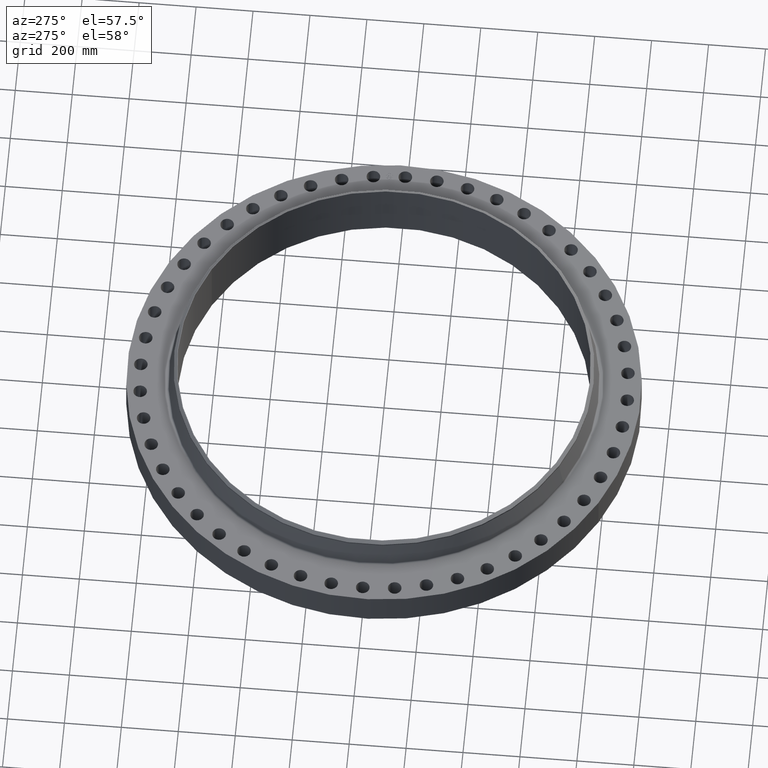
[diagram: clean part render]
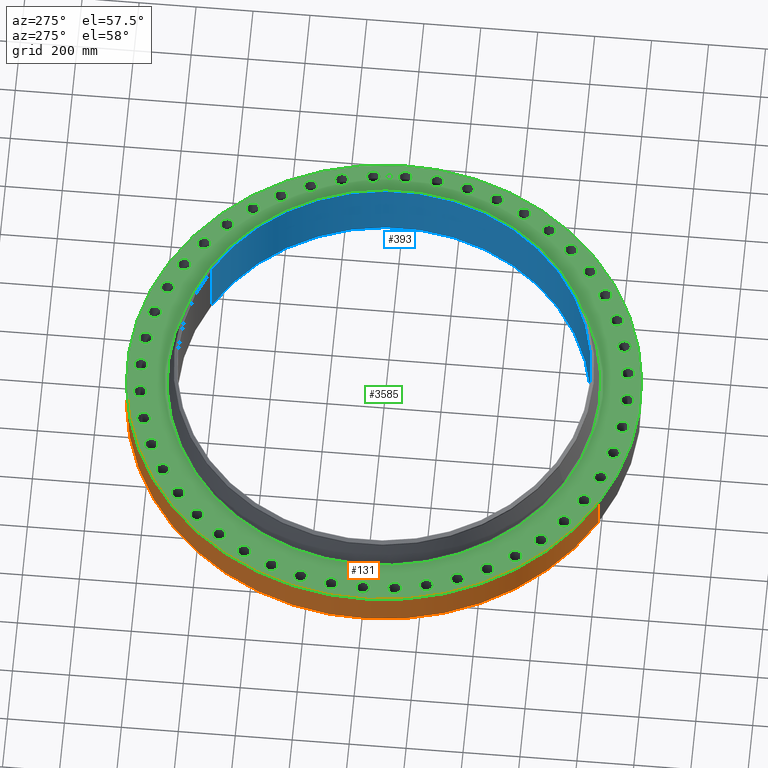
[diagram: same view with three faces highlighted in distinct colors, each labeled with its STEP entity id]
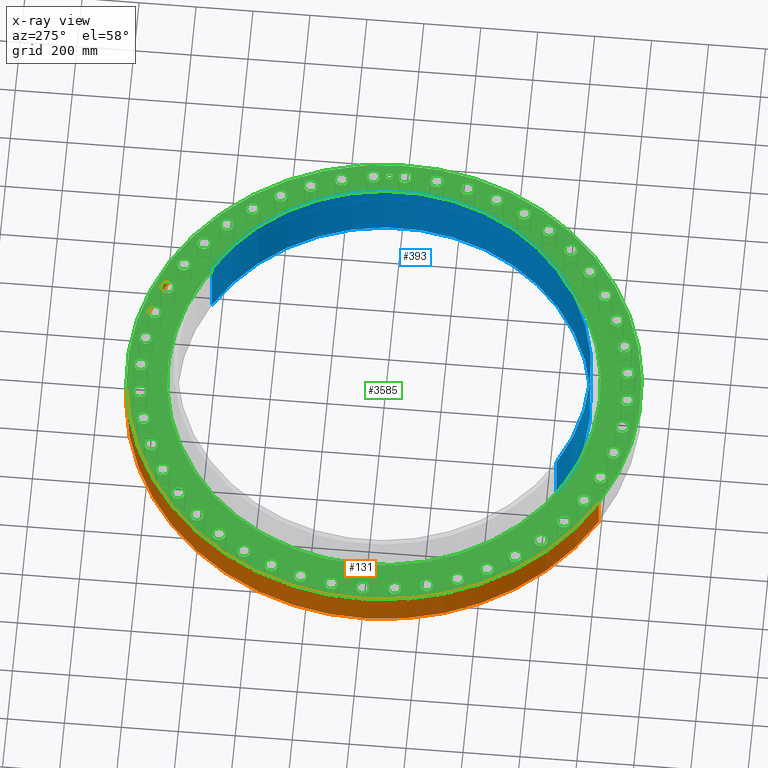
[diagram: x-ray of the same camera — body ghosted, the three highlighted faces saturated]
A machine part, auxiliary view with three faces highlighted in distinct colors.
The next image is the same camera in x-ray (body ghosted, the three faces saturated) — at least one of them is partly hidden behind the body in this view.
Their STEP definitions:

[orange] entity #131 — the highlighted cylindrical surface (partial cylindrical patch) has radius 901.7 mm, axis along (0, 0, -1).
#95=AXIS2_PLACEMENT_3D('Cylinder Axis2P3D',#92,#93,#94) ;
#99=AXIS2_PLACEMENT_3D('Circle Axis2P3D',#97,#98,$) ;
#115=AXIS2_PLACEMENT_3D('Circle Axis2P3D',#113,#114,$) ;
#92=CARTESIAN_POINT('Axis2P3D Location',(0.,0.,4.61350000002)) ;
#97=CARTESIAN_POINT('Axis2P3D Location',(0.,0.,4.47585975282E-015)) ;
#101=CARTESIAN_POINT('Vertex',(-17.0196066205,-31.1541809472,4.47585975282E-015)) ;
#103=CARTESIAN_POINT('Vertex',(17.0196066205,31.1541809472,4.47585975282E-015)) ;
#106=CARTESIAN_POINT('Line Origine',(-17.0196066205,-31.1541809472,2.50000000001)) ;
#110=CARTESIAN_POINT('Vertex',(-17.0196066205,-31.1541809472,5.00000000002)) ;
#113=CARTESIAN_POINT('Axis2P3D Location',(0.,0.,5.00000000002)) ;
#117=CARTESIAN_POINT('Vertex',(17.0196066205,31.1541809472,5.00000000002)) ;
#120=CARTESIAN_POINT('Line Origine',(17.0196066205,31.1541809472,2.50000000001)) ;
#93=DIRECTION('Axis2P3D Direction',(0.,0.,-0.0393700787402)) ;
#94=DIRECTION('Axis2P3D XDirection',(0.0188750212049,0.0345504945626,0.)) ;
#98=DIRECTION('Axis2P3D Direction',(0.,0.,-0.0393700787402)) ;
#107=DIRECTION('Vector Direction',(0.,0.,-0.0393700787402)) ;
#114=DIRECTION('Axis2P3D Direction',(0.,0.,-0.0393700787402)) ;
#121=DIRECTION('Vector Direction',(0.,0.,-0.0393700787402)) ;
#108=VECTOR('Line Direction',#107,0.0393700787402) ;
#122=VECTOR('Line Direction',#121,0.0393700787402) ;
#126=ORIENTED_EDGE('',*,*,#105,.F.) ;
#127=ORIENTED_EDGE('',*,*,#112,.T.) ;
#128=ORIENTED_EDGE('',*,*,#119,.T.) ;
#129=ORIENTED_EDGE('',*,*,#124,.F.) ;
#131=ADVANCED_FACE('PartBody',(#130),#96,.T.) ;
#100=CIRCLE('generated circle',#99,35.5000000001) ;
#116=CIRCLE('generated circle',#115,35.5000000001) ;
#96=CYLINDRICAL_SURFACE('generated cylinder',#95,35.5000000001) ;
#105=EDGE_CURVE('',#102,#104,#100,.T.) ;
#112=EDGE_CURVE('',#102,#111,#109,.F.) ;
#119=EDGE_CURVE('',#111,#118,#116,.T.) ;
#124=EDGE_CURVE('',#104,#118,#123,.F.) ;
#125=EDGE_LOOP('',(#126,#127,#128,#129)) ;
#130=FACE_OUTER_BOUND('',#125,.T.) ;
#109=LINE('Line',#106,#108) ;
#123=LINE('Line',#120,#122) ;
#102=VERTEX_POINT('',#101) ;
#104=VERTEX_POINT('',#103) ;
#111=VERTEX_POINT('',#110) ;
#118=VERTEX_POINT('',#117) ;

[blue] entity #393 — the highlighted cylindrical surface (partial cylindrical patch) has radius 723.9 mm, axis along (0, 0, -1).
#355=AXIS2_PLACEMENT_3D('Circle Axis2P3D',#353,#354,$) ;
#366=AXIS2_PLACEMENT_3D('Cylinder Axis2P3D',#363,#364,#365) ;
#377=AXIS2_PLACEMENT_3D('Circle Axis2P3D',#375,#376,$) ;
#348=CARTESIAN_POINT('Vertex',(-13.6636278503,-25.011103014,9.19000000004)) ;
#350=CARTESIAN_POINT('Vertex',(13.6636278503,25.011103014,9.19000000004)) ;
#353=CARTESIAN_POINT('Axis2P3D Location',(-2.23792987641E-015,-1.1189649382E-015,9.19000000004)) ;
#363=CARTESIAN_POINT('Axis2P3D Location',(0.,0.,4.61350000002)) ;
#368=CARTESIAN_POINT('Line Origine',(13.6636278503,25.011103014,4.56350000002)) ;
#372=CARTESIAN_POINT('Vertex',(13.6636278503,25.011103014,-0.0630000000003)) ;
#375=CARTESIAN_POINT('Axis2P3D Location',(0.,0.,-0.0630000000003)) ;
#379=CARTESIAN_POINT('Vertex',(-13.6636278503,-25.011103014,-0.0630000000003)) ;
#382=CARTESIAN_POINT('Line Origine',(-13.6636278503,-25.011103014,4.56350000002)) ;
#354=DIRECTION('Axis2P3D Direction',(0.,-0.,-0.0393700787402)) ;
#364=DIRECTION('Axis2P3D Direction',(0.,0.,-0.0393700787402)) ;
#365=DIRECTION('Axis2P3D XDirection',(-0.0188750212049,-0.0345504945626,0.)) ;
#369=DIRECTION('Vector Direction',(0.,0.,-0.0393700787402)) ;
#376=DIRECTION('Axis2P3D Direction',(0.,0.,-0.0393700787402)) ;
#383=DIRECTION('Vector Direction',(0.,0.,-0.0393700787402)) ;
#370=VECTOR('Line Direction',#369,0.0393700787402) ;
#384=VECTOR('Line Direction',#383,0.0393700787402) ;
#388=ORIENTED_EDGE('',*,*,#374,.T.) ;
#389=ORIENTED_EDGE('',*,*,#381,.T.) ;
#390=ORIENTED_EDGE('',*,*,#386,.F.) ;
#391=ORIENTED_EDGE('',*,*,#357,.F.) ;
#393=ADVANCED_FACE('PartBody',(#392),#367,.F.) ;
#356=CIRCLE('generated circle',#355,28.5000000001) ;
#378=CIRCLE('generated circle',#377,28.5000000001) ;
#367=CYLINDRICAL_SURFACE('generated cylinder',#366,28.5000000001) ;
#357=EDGE_CURVE('',#351,#349,#356,.T.) ;
#374=EDGE_CURVE('',#351,#373,#371,.T.) ;
#381=EDGE_CURVE('',#373,#380,#378,.T.) ;
#386=EDGE_CURVE('',#349,#380,#385,.T.) ;
#387=EDGE_LOOP('',(#388,#389,#390,#391)) ;
#392=FACE_OUTER_BOUND('',#387,.T.) ;
#371=LINE('Line',#368,#370) ;
#385=LINE('Line',#382,#384) ;
#349=VERTEX_POINT('',#348) ;
#351=VERTEX_POINT('',#350) ;
#373=VERTEX_POINT('',#372) ;
#380=VERTEX_POINT('',#379) ;

[green] entity #3585 — the highlighted planar face has unit normal (0, 0, -1).
#65=AXIS2_PLACEMENT_3D('Circle Axis2P3D',#63,#64,$) ;
#82=AXIS2_PLACEMENT_3D('Circle Axis2P3D',#80,#81,$) ;
#115=AXIS2_PLACEMENT_3D('Circle Axis2P3D',#113,#114,$) ;
#139=AXIS2_PLACEMENT_3D('Circle Axis2P3D',#137,#138,$) ;
#156=AXIS2_PLACEMENT_3D('Circle Axis2P3D',#154,#155,$) ;
#191=AXIS2_PLACEMENT_3D('Circle Axis2P3D',#189,#190,$) ;
#1362=AXIS2_PLACEMENT_3D('Circle Axis2P3D',#1360,#1361,$) ;
#1374=AXIS2_PLACEMENT_3D('Circle Axis2P3D',#1372,#1373,$) ;
#1405=AXIS2_PLACEMENT_3D('Circle Axis2P3D',#1403,#1404,$) ;
#1417=AXIS2_PLACEMENT_3D('Circle Axis2P3D',#1415,#1416,$) ;
#1448=AXIS2_PLACEMENT_3D('Circle Axis2P3D',#1446,#1447,$) ;
#1460=AXIS2_PLACEMENT_3D('Circle Axis2P3D',#1458,#1459,$) ;
#1491=AXIS2_PLACEMENT_3D('Circle Axis2P3D',#1489,#1490,$) ;
#1503=AXIS2_PLACEMENT_3D('Circle Axis2P3D',#1501,#1502,$) ;
#1534=AXIS2_PLACEMENT_3D('Circle Axis2P3D',#1532,#1533,$) ;
#1546=AXIS2_PLACEMENT_3D('Circle Axis2P3D',#1544,#1545,$) ;
#1577=AXIS2_PLACEMENT_3D('Circle Axis2P3D',#1575,#1576,$) ;
#1589=AXIS2_PLACEMENT_3D('Circle Axis2P3D',#1587,#1588,$) ;
#1620=AXIS2_PLACEMENT_3D('Circle Axis2P3D',#1618,#1619,$) ;
#1632=AXIS2_PLACEMENT_3D('Circle Axis2P3D',#1630,#1631,$) ;
#1663=AXIS2_PLACEMENT_3D('Circle Axis2P3D',#1661,#1662,$) ;
#1675=AXIS2_PLACEMENT_3D('Circle Axis2P3D',#1673,#1674,$) ;
#1706=AXIS2_PLACEMENT_3D('Circle Axis2P3D',#1704,#1705,$) ;
#1718=AXIS2_PLACEMENT_3D('Circle Axis2P3D',#1716,#1717,$) ;
#1749=AXIS2_PLACEMENT_3D('Circle Axis2P3D',#1747,#1748,$) ;
#1761=AXIS2_PLACEMENT_3D('Circle Axis2P3D',#1759,#1760,$) ;
#1792=AXIS2_PLACEMENT_3D('Circle Axis2P3D',#1790,#1791,$) ;
#1804=AXIS2_PLACEMENT_3D('Circle Axis2P3D',#1802,#1803,$) ;
#1835=AXIS2_PLACEMENT_3D('Circle Axis2P3D',#1833,#1834,$) ;
#1847=AXIS2_PLACEMENT_3D('Circle Axis2P3D',#1845,#1846,$) ;
#1878=AXIS2_PLACEMENT_3D('Circle Axis2P3D',#1876,#1877,$) ;
#1890=AXIS2_PLACEMENT_3D('Circle Axis2P3D',#1888,#1889,$) ;
#1921=AXIS2_PLACEMENT_3D('Circle Axis2P3D',#1919,#1920,$) ;
#1933=AXIS2_PLACEMENT_3D('Circle Axis2P3D',#1931,#1932,$) ;
#1964=AXIS2_PLACEMENT_3D('Circle Axis2P3D',#1962,#1963,$) ;
#1976=AXIS2_PLACEMENT_3D('Circle Axis2P3D',#1974,#1975,$) ;
#2007=AXIS2_PLACEMENT_3D('Circle Axis2P3D',#2005,#2006,$) ;
#2019=AXIS2_PLACEMENT_3D('Circle Axis2P3D',#2017,#2018,$) ;
#2050=AXIS2_PLACEMENT_3D('Circle Axis2P3D',#2048,#2049,$) ;
#2062=AXIS2_PLACEMENT_3D('Circle Axis2P3D',#2060,#2061,$) ;
#2093=AXIS2_PLACEMENT_3D('Circle Axis2P3D',#2091,#2092,$) ;
#2105=AXIS2_PLACEMENT_3D('Circle Axis2P3D',#2103,#2104,$) ;
#2136=AXIS2_PLACEMENT_3D('Circle Axis2P3D',#2134,#2135,$) ;
#2148=AXIS2_PLACEMENT_3D('Circle Axis2P3D',#2146,#2147,$) ;
#2179=AXIS2_PLACEMENT_3D('Circle Axis2P3D',#2177,#2178,$) ;
#2191=AXIS2_PLACEMENT_3D('Circle Axis2P3D',#2189,#2190,$) ;
#2222=AXIS2_PLACEMENT_3D('Circle Axis2P3D',#2220,#2221,$) ;
#2234=AXIS2_PLACEMENT_3D('Circle Axis2P3D',#2232,#2233,$) ;
#2265=AXIS2_PLACEMENT_3D('Circle Axis2P3D',#2263,#2264,$) ;
#2277=AXIS2_PLACEMENT_3D('Circle Axis2P3D',#2275,#2276,$) ;
#2308=AXIS2_PLACEMENT_3D('Circle Axis2P3D',#2306,#2307,$) ;
#2320=AXIS2_PLACEMENT_3D('Circle Axis2P3D',#2318,#2319,$) ;
#2351=AXIS2_PLACEMENT_3D('Circle Axis2P3D',#2349,#2350,$) ;
#2363=AXIS2_PLACEMENT_3D('Circle Axis2P3D',#2361,#2362,$) ;
#2394=AXIS2_PLACEMENT_3D('Circle Axis2P3D',#2392,#2393,$) ;
#2406=AXIS2_PLACEMENT_3D('Circle Axis2P3D',#2404,#2405,$) ;
#2437=AXIS2_PLACEMENT_3D('Circle Axis2P3D',#2435,#2436,$) ;
#2449=AXIS2_PLACEMENT_3D('Circle Axis2P3D',#2447,#2448,$) ;
#2480=AXIS2_PLACEMENT_3D('Circle Axis2P3D',#2478,#2479,$) ;
#2492=AXIS2_PLACEMENT_3D('Circle Axis2P3D',#2490,#2491,$) ;
#2523=AXIS2_PLACEMENT_3D('Circle Axis2P3D',#2521,#2522,$) ;
#2535=AXIS2_PLACEMENT_3D('Circle Axis2P3D',#2533,#2534,$) ;
#2566=AXIS2_PLACEMENT_3D('Circle Axis2P3D',#2564,#2565,$) ;
#2578=AXIS2_PLACEMENT_3D('Circle Axis2P3D',#2576,#2577,$) ;
#2609=AXIS2_PLACEMENT_3D('Circle Axis2P3D',#2607,#2608,$) ;
#2621=AXIS2_PLACEMENT_3D('Circle Axis2P3D',#2619,#2620,$) ;
#2652=AXIS2_PLACEMENT_3D('Circle Axis2P3D',#2650,#2651,$) ;
#2664=AXIS2_PLACEMENT_3D('Circle Axis2P3D',#2662,#2663,$) ;
#2695=AXIS2_PLACEMENT_3D('Circle Axis2P3D',#2693,#2694,$) ;
#2707=AXIS2_PLACEMENT_3D('Circle Axis2P3D',#2705,#2706,$) ;
#2738=AXIS2_PLACEMENT_3D('Circle Axis2P3D',#2736,#2737,$) ;
#2750=AXIS2_PLACEMENT_3D('Circle Axis2P3D',#2748,#2749,$) ;
#2781=AXIS2_PLACEMENT_3D('Circle Axis2P3D',#2779,#2780,$) ;
#2793=AXIS2_PLACEMENT_3D('Circle Axis2P3D',#2791,#2792,$) ;
#2824=AXIS2_PLACEMENT_3D('Circle Axis2P3D',#2822,#2823,$) ;
#2836=AXIS2_PLACEMENT_3D('Circle Axis2P3D',#2834,#2835,$) ;
#2867=AXIS2_PLACEMENT_3D('Circle Axis2P3D',#2865,#2866,$) ;
#2879=AXIS2_PLACEMENT_3D('Circle Axis2P3D',#2877,#2878,$) ;
#2910=AXIS2_PLACEMENT_3D('Circle Axis2P3D',#2908,#2909,$) ;
#2922=AXIS2_PLACEMENT_3D('Circle Axis2P3D',#2920,#2921,$) ;
#2953=AXIS2_PLACEMENT_3D('Circle Axis2P3D',#2951,#2952,$) ;
#2965=AXIS2_PLACEMENT_3D('Circle Axis2P3D',#2963,#2964,$) ;
#2996=AXIS2_PLACEMENT_3D('Circle Axis2P3D',#2994,#2995,$) ;
#3008=AXIS2_PLACEMENT_3D('Circle Axis2P3D',#3006,#3007,$) ;
#3039=AXIS2_PLACEMENT_3D('Circle Axis2P3D',#3037,#3038,$) ;
#3051=AXIS2_PLACEMENT_3D('Circle Axis2P3D',#3049,#3050,$) ;
#3082=AXIS2_PLACEMENT_3D('Circle Axis2P3D',#3080,#3081,$) ;
#3094=AXIS2_PLACEMENT_3D('Circle Axis2P3D',#3092,#3093,$) ;
#3125=AXIS2_PLACEMENT_3D('Circle Axis2P3D',#3123,#3124,$) ;
#3137=AXIS2_PLACEMENT_3D('Circle Axis2P3D',#3135,#3136,$) ;
#3168=AXIS2_PLACEMENT_3D('Circle Axis2P3D',#3166,#3167,$) ;
#3180=AXIS2_PLACEMENT_3D('Circle Axis2P3D',#3178,#3179,$) ;
#3211=AXIS2_PLACEMENT_3D('Circle Axis2P3D',#3209,#3210,$) ;
#3223=AXIS2_PLACEMENT_3D('Circle Axis2P3D',#3221,#3222,$) ;
#3254=AXIS2_PLACEMENT_3D('Circle Axis2P3D',#3252,#3253,$) ;
#3266=AXIS2_PLACEMENT_3D('Circle Axis2P3D',#3264,#3265,$) ;
#3297=AXIS2_PLACEMENT_3D('Circle Axis2P3D',#3295,#3296,$) ;
#3309=AXIS2_PLACEMENT_3D('Circle Axis2P3D',#3307,#3308,$) ;
#3340=AXIS2_PLACEMENT_3D('Circle Axis2P3D',#3338,#3339,$) ;
#3352=AXIS2_PLACEMENT_3D('Circle Axis2P3D',#3350,#3351,$) ;
#3365=AXIS2_PLACEMENT_3D('Plane Axis2P3D',#3362,#3363,#3364) ;
#3569=AXIS2_PLACEMENT_3D('Circle Axis2P3D',#3567,#3568,$) ;
#3578=AXIS2_PLACEMENT_3D('Circle Axis2P3D',#3576,#3577,$) ;
#46=CARTESIAN_POINT('Vertex',(32.800072392,0.45066000629,5.00000000002)) ;
#60=CARTESIAN_POINT('Vertex',(34.4499276083,-0.45066000629,5.00000000002)) ;
#63=CARTESIAN_POINT('Axis2P3D Location',(33.6250000001,0.,5.00000000002)) ;
#80=CARTESIAN_POINT('Axis2P3D Location',(33.6250000001,0.,5.00000000002)) ;
#110=CARTESIAN_POINT('Vertex',(-17.0196066205,-31.1541809472,5.00000000002)) ;
#113=CARTESIAN_POINT('Axis2P3D Location',(0.,0.,5.00000000002)) ;
#117=CARTESIAN_POINT('Vertex',(17.0196066205,31.1541809472,5.00000000002)) ;
#137=CARTESIAN_POINT('Axis2P3D Location',(0.,0.,5.00000000002)) ;
#154=CARTESIAN_POINT('Axis2P3D Location',(0.,0.,5.00000000002)) ;
#158=CARTESIAN_POINT('Vertex',(14.3333030332,26.2369352139,5.00000000002)) ;
#160=CARTESIAN_POINT('Vertex',(-14.3333030332,-26.2369352139,5.00000000002)) ;
#189=CARTESIAN_POINT('Axis2P3D Location',(0.,0.,5.00000000002)) ;
#1350=CARTESIAN_POINT('Vertex',(-32.5782861603,3.8344640064,5.00000000002)) ;
#1357=CARTESIAN_POINT('Vertex',(-34.0963807674,4.94342242043,5.00000000002)) ;
#1360=CARTESIAN_POINT('Axis2P3D Location',(-33.3373334638,4.38894321342,5.00000000002)) ;
#1372=CARTESIAN_POINT('Axis2P3D Location',(-33.3373334638,4.38894321342,5.00000000002)) ;
#1393=CARTESIAN_POINT('Vertex',(31.79907642,-8.05397927683,5.00000000002)) ;
#1400=CARTESIAN_POINT('Vertex',(33.1594353982,-9.35160150639,5.00000000002)) ;
#1403=CARTESIAN_POINT('Axis2P3D Location',(32.4792559091,-8.70279039161,5.00000000002)) ;
#1415=CARTESIAN_POINT('Axis2P3D Location',(32.4792559091,-8.70279039161,5.00000000002)) ;
#1436=CARTESIAN_POINT('Vertex',(-31.79907642,8.05397927683,5.00000000002)) ;
#1443=CARTESIAN_POINT('Vertex',(-33.1594353982,9.35160150639,5.00000000002)) ;
#1446=CARTESIAN_POINT('Axis2P3D Location',(-32.4792559091,8.70279039161,5.00000000002)) ;
#1458=CARTESIAN_POINT('Axis2P3D Location',(-32.4792559091,8.70279039161,5.00000000002)) ;
#1479=CARTESIAN_POINT('Vertex',(30.4757756659,-12.1356887288,5.00000000002)) ;
#1486=CARTESIAN_POINT('Vertex',(31.6551228958,-13.5997720978,5.00000000002)) ;
#1489=CARTESIAN_POINT('Axis2P3D Location',(31.0654492808,-12.8677304133,5.00000000002)) ;
#1501=CARTESIAN_POINT('Axis2P3D Location',(31.0654492808,-12.8677304133,5.00000000002)) ;
#1522=CARTESIAN_POINT('Vertex',(-30.4757756659,12.1356887288,5.00000000002)) ;
#1529=CARTESIAN_POINT('Vertex',(-31.6551228958,13.5997720978,5.00000000002)) ;
#1532=CARTESIAN_POINT('Axis2P3D Location',(-31.0654492808,12.8677304133,5.00000000002)) ;
#1544=CARTESIAN_POINT('Axis2P3D Location',(-31.0654492808,12.8677304133,5.00000000002)) ;
#1565=CARTESIAN_POINT('Vertex',(28.6310259405,-16.0097531821,5.00000000002)) ;
#1572=CARTESIAN_POINT('Vertex',(29.6091824642,-17.6152468181,5.00000000002)) ;
#1575=CARTESIAN_POINT('Axis2P3D Location',(29.1201042024,-16.8125000001,5.00000000002)) ;
#1587=CARTESIAN_POINT('Axis2P3D Location',(29.1201042024,-16.8125000001,5.00000000002)) ;
#1608=CARTESIAN_POINT('Vertex',(-28.6310259405,16.0097531821,5.00000000002)) ;
#1615=CARTESIAN_POINT('Vertex',(-29.6091824642,17.6152468181,5.00000000002)) ;
#1618=CARTESIAN_POINT('Axis2P3D Location',(-29.1201042024,16.8125000001,5.00000000002)) ;
#1630=CARTESIAN_POINT('Axis2P3D Location',(-29.1201042024,16.8125000001,5.00000000002)) ;
#1651=CARTESIAN_POINT('Vertex',(26.2963914234,-19.6098863196,5.00000000002)) ;
#1658=CARTESIAN_POINT('Vertex',(27.0566207114,-21.3293197814,5.00000000002)) ;
#1661=CARTESIAN_POINT('Axis2P3D Location',(26.6765060674,-20.4696030505,5.00000000002)) ;
#1673=CARTESIAN_POINT('Axis2P3D Location',(26.6765060674,-20.4696030505,5.00000000002)) ;
#1694=CARTESIAN_POINT('Vertex',(-26.2963914234,19.6098863196,5.00000000002)) ;
#1701=CARTESIAN_POINT('Vertex',(-27.0566207114,21.3293197814,5.00000000002)) ;
#1704=CARTESIAN_POINT('Axis2P3D Location',(-26.6765060674,20.4696030505,5.00000000002)) ;
#1716=CARTESIAN_POINT('Axis2P3D Location',(-26.6765060674,20.4696030505,5.00000000002)) ;
#1737=CARTESIAN_POINT('Vertex',(23.5118183582,-22.8744888653,5.00000000002)) ;
#1744=CARTESIAN_POINT('Vertex',(24.0411126768,-24.6784421697,5.00000000002)) ;
#1747=CARTESIAN_POINT('Axis2P3D Location',(23.7764655175,-23.7764655175,5.00000000002)) ;
#1759=CARTESIAN_POINT('Axis2P3D Location',(23.7764655175,-23.7764655175,5.00000000002)) ;
#1780=CARTESIAN_POINT('Vertex',(-23.5118183582,22.8744888653,5.00000000002)) ;
#1787=CARTESIAN_POINT('Vertex',(-24.0411126768,24.6784421697,5.00000000002)) ;
#1790=CARTESIAN_POINT('Axis2P3D Location',(-23.7764655175,23.7764655175,5.00000000002)) ;
#1802=CARTESIAN_POINT('Axis2P3D Location',(-23.7764655175,23.7764655175,5.00000000002)) ;
#1823=CARTESIAN_POINT('Vertex',(20.3249515622,-25.7477025645,5.00000000002)) ;
#1830=CARTESIAN_POINT('Vertex',(20.6142545388,-27.6053095703,5.00000000002)) ;
#1833=CARTESIAN_POINT('Axis2P3D Location',(20.4696030505,-26.6765060674,5.00000000002)) ;
#1845=CARTESIAN_POINT('Axis2P3D Location',(20.4696030505,-26.6765060674,5.00000000002)) ;
#1866=CARTESIAN_POINT('Vertex',(-20.3249515622,25.7477025645,5.00000000002)) ;
#1873=CARTESIAN_POINT('Vertex',(-20.6142545388,27.6053095703,5.00000000002)) ;
#1876=CARTESIAN_POINT('Axis2P3D Location',(-20.4696030505,26.6765060674,5.00000000002)) ;
#1888=CARTESIAN_POINT('Axis2P3D Location',(-20.4696030505,26.6765060674,5.00000000002)) ;
#1909=CARTESIAN_POINT('Vertex',(16.7903192099,-28.1803659343,5.00000000002)) ;
#1916=CARTESIAN_POINT('Vertex',(16.8346807902,-30.0598424705,5.00000000002)) ;
#1919=CARTESIAN_POINT('Axis2P3D Location',(16.8125000001,-29.1201042024,5.00000000002)) ;
#1931=CARTESIAN_POINT('Axis2P3D Location',(16.8125000001,-29.1201042024,5.00000000002)) ;
#1952=CARTESIAN_POINT('Vertex',(-16.7903192099,28.1803659343,5.00000000002)) ;
#1959=CARTESIAN_POINT('Vertex',(-16.8346807902,30.0598424705,5.00000000002)) ;
#1962=CARTESIAN_POINT('Axis2P3D Location',(-16.8125000001,29.1201042024,5.00000000002)) ;
#1974=CARTESIAN_POINT('Axis2P3D Location',(-16.8125000001,29.1201042024,5.00000000002)) ;
#1995=CARTESIAN_POINT('Vertex',(12.9683998407,-30.1308554298,5.00000000002)) ;
#2002=CARTESIAN_POINT('Vertex',(12.7670609859,-32.0000431319,5.00000000002)) ;
#2005=CARTESIAN_POINT('Axis2P3D Location',(12.8677304133,-31.0654492808,5.00000000002)) ;
#2017=CARTESIAN_POINT('Axis2P3D Location',(12.8677304133,-31.0654492808,5.00000000002)) ;
#2038=CARTESIAN_POINT('Vertex',(-12.9683998407,30.1308554298,5.00000000002)) ;
#2045=CARTESIAN_POINT('Vertex',(-12.7670609859,32.0000431319,5.00000000002)) ;
#2048=CARTESIAN_POINT('Axis2P3D Location',(-12.8677304133,31.0654492808,5.00000000002)) ;
#2060=CARTESIAN_POINT('Axis2P3D Location',(-12.8677304133,31.0654492808,5.00000000002)) ;
#2081=CARTESIAN_POINT('Vertex',(8.92458755473,-31.565797635,5.00000000002)) ;
#2088=CARTESIAN_POINT('Vertex',(8.48099322848,-33.3927141832,5.00000000002)) ;
#2091=CARTESIAN_POINT('Axis2P3D Location',(8.70279039161,-32.4792559091,5.00000000002)) ;
#2103=CARTESIAN_POINT('Axis2P3D Location',(8.70279039161,-32.4792559091,5.00000000002)) ;
#2124=CARTESIAN_POINT('Vertex',(-8.92458755473,31.565797635,5.00000000002)) ;
#2131=CARTESIAN_POINT('Vertex',(-8.48099322848,33.3927141832,5.00000000002)) ;
#2134=CARTESIAN_POINT('Axis2P3D Location',(-8.70279039161,32.4792559091,5.00000000002)) ;
#2146=CARTESIAN_POINT('Axis2P3D Location',(-8.70279039161,32.4792559091,5.00000000002)) ;
#2167=CARTESIAN_POINT('Vertex',(4.72807310133,-32.4606402911,5.00000000002)) ;
#2174=CARTESIAN_POINT('Vertex',(4.04981332551,-34.2140266366,5.00000000002)) ;
#2177=CARTESIAN_POINT('Axis2P3D Location',(4.38894321342,-33.3373334638,5.00000000002)) ;
#2189=CARTESIAN_POINT('Axis2P3D Location',(4.38894321342,-33.3373334638,5.00000000002)) ;
#2210=CARTESIAN_POINT('Vertex',(-4.72807310133,32.4606402911,5.00000000002)) ;
#2217=CARTESIAN_POINT('Vertex',(-4.04981332551,34.2140266366,5.00000000002)) ;
#2220=CARTESIAN_POINT('Axis2P3D Location',(-4.38894321342,33.3373334638,5.00000000002)) ;
#2232=CARTESIAN_POINT('Axis2P3D Location',(-4.38894321342,33.3373334638,5.00000000002)) ;
#2253=CARTESIAN_POINT('Vertex',(0.45066000629,-32.800072392,5.00000000002)) ;
#2260=CARTESIAN_POINT('Vertex',(-0.45066000629,-34.4499276083,5.00000000002)) ;
#2263=CARTESIAN_POINT('Axis2P3D Location',(-2.41692232174E-015,-33.6250000001,5.00000000002)) ;
#2275=CARTESIAN_POINT('Axis2P3D Location',(-2.41692232174E-015,-33.6250000001,5.00000000002)) ;
#2296=CARTESIAN_POINT('Vertex',(-0.45066000629,32.800072392,5.00000000002)) ;
#2303=CARTESIAN_POINT('Vertex',(0.45066000629,34.4499276083,5.00000000002)) ;
#2306=CARTESIAN_POINT('Axis2P3D Location',(-1.7009525404E-015,33.6250000001,5.00000000002)) ;
#2318=CARTESIAN_POINT('Axis2P3D Location',(-1.7009525404E-015,33.6250000001,5.00000000002)) ;
#2339=CARTESIAN_POINT('Vertex',(-3.8344640064,-32.5782861603,5.00000000002)) ;
#2346=CARTESIAN_POINT('Vertex',(-4.94342242043,-34.0963807674,5.00000000002)) ;
#2349=CARTESIAN_POINT('Axis2P3D Location',(-4.38894321342,-33.3373334638,5.00000000002)) ;
#2361=CARTESIAN_POINT('Axis2P3D Location',(-4.38894321342,-33.3373334638,5.00000000002)) ;
#2382=CARTESIAN_POINT('Vertex',(3.8344640064,32.5782861603,5.00000000002)) ;
#2389=CARTESIAN_POINT('Vertex',(4.94342242043,34.0963807674,5.00000000002)) ;
#2392=CARTESIAN_POINT('Axis2P3D Location',(4.38894321342,33.3373334638,5.00000000002)) ;
#2404=CARTESIAN_POINT('Axis2P3D Location',(4.38894321342,33.3373334638,5.00000000002)) ;
#2425=CARTESIAN_POINT('Vertex',(-8.05397927683,-31.79907642,5.00000000002)) ;
#2432=CARTESIAN_POINT('Vertex',(-9.35160150639,-33.1594353982,5.00000000002)) ;
#2435=CARTESIAN_POINT('Axis2P3D Location',(-8.70279039161,-32.4792559091,5.00000000002)) ;
#2447=CARTESIAN_POINT('Axis2P3D Location',(-8.70279039161,-32.4792559091,5.00000000002)) ;
#2468=CARTESIAN_POINT('Vertex',(8.05397927683,31.79907642,5.00000000002)) ;
#2475=CARTESIAN_POINT('Vertex',(9.35160150639,33.1594353982,5.00000000002)) ;
#2478=CARTESIAN_POINT('Axis2P3D Location',(8.70279039161,32.4792559091,5.00000000002)) ;
#2490=CARTESIAN_POINT('Axis2P3D Location',(8.70279039161,32.4792559091,5.00000000002)) ;
#2511=CARTESIAN_POINT('Vertex',(-12.1356887288,-30.4757756659,5.00000000002)) ;
#2518=CARTESIAN_POINT('Vertex',(-13.5997720978,-31.6551228958,5.00000000002)) ;
#2521=CARTESIAN_POINT('Axis2P3D Location',(-12.8677304133,-31.0654492808,5.00000000002)) ;
#2533=CARTESIAN_POINT('Axis2P3D Location',(-12.8677304133,-31.0654492808,5.00000000002)) ;
#2554=CARTESIAN_POINT('Vertex',(12.1356887288,30.4757756659,5.00000000002)) ;
#2561=CARTESIAN_POINT('Vertex',(13.5997720978,31.6551228958,5.00000000002)) ;
#2564=CARTESIAN_POINT('Axis2P3D Location',(12.8677304133,31.0654492808,5.00000000002)) ;
#2576=CARTESIAN_POINT('Axis2P3D Location',(12.8677304133,31.0654492808,5.00000000002)) ;
#2597=CARTESIAN_POINT('Vertex',(-16.0097531821,-28.6310259405,5.00000000002)) ;
#2604=CARTESIAN_POINT('Vertex',(-17.6152468181,-29.6091824642,5.00000000002)) ;
#2607=CARTESIAN_POINT('Axis2P3D Location',(-16.8125000001,-29.1201042024,5.00000000002)) ;
#2619=CARTESIAN_POINT('Axis2P3D Location',(-16.8125000001,-29.1201042024,5.00000000002)) ;
#2640=CARTESIAN_POINT('Vertex',(16.0097531821,28.6310259405,5.00000000002)) ;
#2647=CARTESIAN_POINT('Vertex',(17.6152468181,29.6091824642,5.00000000002)) ;
#2650=CARTESIAN_POINT('Axis2P3D Location',(16.8125000001,29.1201042024,5.00000000002)) ;
#2662=CARTESIAN_POINT('Axis2P3D Location',(16.8125000001,29.1201042024,5.00000000002)) ;
#2683=CARTESIAN_POINT('Vertex',(-19.6098863196,-26.2963914234,5.00000000002)) ;
#2690=CARTESIAN_POINT('Vertex',(-21.3293197814,-27.0566207114,5.00000000002)) ;
#2693=CARTESIAN_POINT('Axis2P3D Location',(-20.4696030505,-26.6765060674,5.00000000002)) ;
#2705=CARTESIAN_POINT('Axis2P3D Location',(-20.4696030505,-26.6765060674,5.00000000002)) ;
#2726=CARTESIAN_POINT('Vertex',(19.6098863196,26.2963914234,5.00000000002)) ;
#2733=CARTESIAN_POINT('Vertex',(21.3293197814,27.0566207114,5.00000000002)) ;
#2736=CARTESIAN_POINT('Axis2P3D Location',(20.4696030505,26.6765060674,5.00000000002)) ;
#2748=CARTESIAN_POINT('Axis2P3D Location',(20.4696030505,26.6765060674,5.00000000002)) ;
#2769=CARTESIAN_POINT('Vertex',(-22.8744888653,-23.5118183582,5.00000000002)) ;
#2776=CARTESIAN_POINT('Vertex',(-24.6784421697,-24.0411126768,5.00000000002)) ;
#2779=CARTESIAN_POINT('Axis2P3D Location',(-23.7764655175,-23.7764655175,5.00000000002)) ;
#2791=CARTESIAN_POINT('Axis2P3D Location',(-23.7764655175,-23.7764655175,5.00000000002)) ;
#2812=CARTESIAN_POINT('Vertex',(22.8744888653,23.5118183582,5.00000000002)) ;
#2819=CARTESIAN_POINT('Vertex',(24.6784421697,24.0411126768,5.00000000002)) ;
#2822=CARTESIAN_POINT('Axis2P3D Location',(23.7764655175,23.7764655175,5.00000000002)) ;
#2834=CARTESIAN_POINT('Axis2P3D Location',(23.7764655175,23.7764655175,5.00000000002)) ;
#2855=CARTESIAN_POINT('Vertex',(-25.7477025645,-20.3249515622,5.00000000002)) ;
#2862=CARTESIAN_POINT('Vertex',(-27.6053095703,-20.6142545388,5.00000000002)) ;
#2865=CARTESIAN_POINT('Axis2P3D Location',(-26.6765060674,-20.4696030505,5.00000000002)) ;
#2877=CARTESIAN_POINT('Axis2P3D Location',(-26.6765060674,-20.4696030505,5.00000000002)) ;
#2898=CARTESIAN_POINT('Vertex',(25.7477025645,20.3249515622,5.00000000002)) ;
#2905=CARTESIAN_POINT('Vertex',(27.6053095703,20.6142545388,5.00000000002)) ;
#2908=CARTESIAN_POINT('Axis2P3D Location',(26.6765060674,20.4696030505,5.00000000002)) ;
#2920=CARTESIAN_POINT('Axis2P3D Location',(26.6765060674,20.4696030505,5.00000000002)) ;
#2941=CARTESIAN_POINT('Vertex',(-28.1803659343,-16.7903192099,5.00000000002)) ;
#2948=CARTESIAN_POINT('Vertex',(-30.0598424705,-16.8346807902,5.00000000002)) ;
#2951=CARTESIAN_POINT('Axis2P3D Location',(-29.1201042024,-16.8125000001,5.00000000002)) ;
#2963=CARTESIAN_POINT('Axis2P3D Location',(-29.1201042024,-16.8125000001,5.00000000002)) ;
#2984=CARTESIAN_POINT('Vertex',(28.1803659343,16.7903192099,5.00000000002)) ;
#2991=CARTESIAN_POINT('Vertex',(30.0598424705,16.8346807902,5.00000000002)) ;
#2994=CARTESIAN_POINT('Axis2P3D Location',(29.1201042024,16.8125000001,5.00000000002)) ;
#3006=CARTESIAN_POINT('Axis2P3D Location',(29.1201042024,16.8125000001,5.00000000002)) ;
#3027=CARTESIAN_POINT('Vertex',(-30.1308554298,-12.9683998407,5.00000000002)) ;
#3034=CARTESIAN_POINT('Vertex',(-32.0000431319,-12.7670609859,5.00000000002)) ;
#3037=CARTESIAN_POINT('Axis2P3D Location',(-31.0654492808,-12.8677304133,5.00000000002)) ;
#3049=CARTESIAN_POINT('Axis2P3D Location',(-31.0654492808,-12.8677304133,5.00000000002)) ;
#3070=CARTESIAN_POINT('Vertex',(30.1308554298,12.9683998407,5.00000000002)) ;
#3077=CARTESIAN_POINT('Vertex',(32.0000431319,12.7670609859,5.00000000002)) ;
#3080=CARTESIAN_POINT('Axis2P3D Location',(31.0654492808,12.8677304133,5.00000000002)) ;
#3092=CARTESIAN_POINT('Axis2P3D Location',(31.0654492808,12.8677304133,5.00000000002)) ;
#3113=CARTESIAN_POINT('Vertex',(-31.565797635,-8.92458755473,5.00000000002)) ;
#3120=CARTESIAN_POINT('Vertex',(-33.3927141832,-8.48099322848,5.00000000002)) ;
#3123=CARTESIAN_POINT('Axis2P3D Location',(-32.4792559091,-8.70279039161,5.00000000002)) ;
#3135=CARTESIAN_POINT('Axis2P3D Location',(-32.4792559091,-8.70279039161,5.00000000002)) ;
#3156=CARTESIAN_POINT('Vertex',(31.565797635,8.92458755473,5.00000000002)) ;
#3163=CARTESIAN_POINT('Vertex',(33.3927141832,8.48099322848,5.00000000002)) ;
#3166=CARTESIAN_POINT('Axis2P3D Location',(32.4792559091,8.70279039161,5.00000000002)) ;
#3178=CARTESIAN_POINT('Axis2P3D Location',(32.4792559091,8.70279039161,5.00000000002)) ;
#3199=CARTESIAN_POINT('Vertex',(-32.4606402911,-4.72807310133,5.00000000002)) ;
#3206=CARTESIAN_POINT('Vertex',(-34.2140266366,-4.04981332551,5.00000000002)) ;
#3209=CARTESIAN_POINT('Axis2P3D Location',(-33.3373334638,-4.38894321342,5.00000000002)) ;
#3221=CARTESIAN_POINT('Axis2P3D Location',(-33.3373334638,-4.38894321342,5.00000000002)) ;
#3242=CARTESIAN_POINT('Vertex',(32.4606402911,4.72807310133,5.00000000002)) ;
#3249=CARTESIAN_POINT('Vertex',(34.2140266366,4.04981332551,5.00000000002)) ;
#3252=CARTESIAN_POINT('Axis2P3D Location',(33.3373334638,4.38894321342,5.00000000002)) ;
#3264=CARTESIAN_POINT('Axis2P3D Location',(33.3373334638,4.38894321342,5.00000000002)) ;
#3285=CARTESIAN_POINT('Vertex',(-32.800072392,-0.45066000629,5.00000000002)) ;
#3292=CARTESIAN_POINT('Vertex',(-34.4499276083,0.45066000629,5.00000000002)) ;
#3295=CARTESIAN_POINT('Axis2P3D Location',(-33.6250000001,-4.11787486215E-015,5.00000000002)) ;
#3307=CARTESIAN_POINT('Axis2P3D Location',(-33.6250000001,-4.11787486215E-015,5.00000000002)) ;
#3328=CARTESIAN_POINT('Vertex',(32.5782861603,-3.8344640064,5.00000000002)) ;
#3335=CARTESIAN_POINT('Vertex',(34.0963807674,-4.94342242043,5.00000000002)) ;
#3338=CARTESIAN_POINT('Axis2P3D Location',(33.3373334638,-4.38894321342,5.00000000002)) ;
#3350=CARTESIAN_POINT('Axis2P3D Location',(33.3373334638,-4.38894321342,5.00000000002)) ;
#3362=CARTESIAN_POINT('Axis2P3D Location',(0.,35.5000000001,5.00000000002)) ;
#3567=CARTESIAN_POINT('Axis2P3D Location',(33.553006294,2.19918022037,5.00000000002)) ;
#3571=CARTESIAN_POINT('Vertex',(33.5203048044,2.69810853844,5.00000000002)) ;
#3573=CARTESIAN_POINT('Vertex',(33.5857077837,1.7002519023,5.00000000002)) ;
#3576=CARTESIAN_POINT('Axis2P3D Location',(33.553006294,2.19918022037,5.00000000002)) ;
#64=DIRECTION('Axis2P3D Direction',(0.,-0.,-0.0393700787402)) ;
#81=DIRECTION('Axis2P3D Direction',(0.,-0.,-0.0393700787402)) ;
#114=DIRECTION('Axis2P3D Direction',(0.,0.,-0.0393700787402)) ;
#138=DIRECTION('Axis2P3D Direction',(0.,0.,-0.0393700787402)) ;
#155=DIRECTION('Axis2P3D Direction',(0.,0.,-0.0393700787402)) ;
#190=DIRECTION('Axis2P3D Direction',(0.,0.,-0.0393700787402)) ;
#1361=DIRECTION('Axis2P3D Direction',(0.,0.,-0.0393700787402)) ;
#1373=DIRECTION('Axis2P3D Direction',(0.,0.,-0.0393700787402)) ;
#1404=DIRECTION('Axis2P3D Direction',(0.,-0.,-0.0393700787402)) ;
#1416=DIRECTION('Axis2P3D Direction',(0.,-0.,-0.0393700787402)) ;
#1447=DIRECTION('Axis2P3D Direction',(0.,0.,-0.0393700787402)) ;
#1459=DIRECTION('Axis2P3D Direction',(0.,0.,-0.0393700787402)) ;
#1490=DIRECTION('Axis2P3D Direction',(0.,-0.,-0.0393700787402)) ;
#1502=DIRECTION('Axis2P3D Direction',(0.,-0.,-0.0393700787402)) ;
#1533=DIRECTION('Axis2P3D Direction',(0.,0.,-0.0393700787402)) ;
#1545=DIRECTION('Axis2P3D Direction',(0.,0.,-0.0393700787402)) ;
#1576=DIRECTION('Axis2P3D Direction',(0.,-0.,-0.0393700787402)) ;
#1588=DIRECTION('Axis2P3D Direction',(0.,-0.,-0.0393700787402)) ;
#1619=DIRECTION('Axis2P3D Direction',(0.,0.,-0.0393700787402)) ;
#1631=DIRECTION('Axis2P3D Direction',(0.,0.,-0.0393700787402)) ;
#1662=DIRECTION('Axis2P3D Direction',(0.,-0.,-0.0393700787402)) ;
#1674=DIRECTION('Axis2P3D Direction',(0.,-0.,-0.0393700787402)) ;
#1705=DIRECTION('Axis2P3D Direction',(0.,0.,-0.0393700787402)) ;
#1717=DIRECTION('Axis2P3D Direction',(0.,0.,-0.0393700787402)) ;
#1748=DIRECTION('Axis2P3D Direction',(0.,-0.,-0.0393700787402)) ;
#1760=DIRECTION('Axis2P3D Direction',(0.,-0.,-0.0393700787402)) ;
#1791=DIRECTION('Axis2P3D Direction',(0.,0.,-0.0393700787402)) ;
#1803=DIRECTION('Axis2P3D Direction',(0.,0.,-0.0393700787402)) ;
#1834=DIRECTION('Axis2P3D Direction',(0.,-0.,-0.0393700787402)) ;
#1846=DIRECTION('Axis2P3D Direction',(0.,-0.,-0.0393700787402)) ;
#1877=DIRECTION('Axis2P3D Direction',(0.,0.,-0.0393700787402)) ;
#1889=DIRECTION('Axis2P3D Direction',(0.,0.,-0.0393700787402)) ;
#1920=DIRECTION('Axis2P3D Direction',(0.,-0.,-0.0393700787402)) ;
#1932=DIRECTION('Axis2P3D Direction',(0.,-0.,-0.0393700787402)) ;
#1963=DIRECTION('Axis2P3D Direction',(0.,0.,-0.0393700787402)) ;
#1975=DIRECTION('Axis2P3D Direction',(0.,0.,-0.0393700787402)) ;
#2006=DIRECTION('Axis2P3D Direction',(0.,-0.,-0.0393700787402)) ;
#2018=DIRECTION('Axis2P3D Direction',(0.,-0.,-0.0393700787402)) ;
#2049=DIRECTION('Axis2P3D Direction',(0.,0.,-0.0393700787402)) ;
#2061=DIRECTION('Axis2P3D Direction',(0.,0.,-0.0393700787402)) ;
#2092=DIRECTION('Axis2P3D Direction',(0.,-0.,-0.0393700787402)) ;
#2104=DIRECTION('Axis2P3D Direction',(0.,-0.,-0.0393700787402)) ;
#2135=DIRECTION('Axis2P3D Direction',(0.,0.,-0.0393700787402)) ;
#2147=DIRECTION('Axis2P3D Direction',(0.,0.,-0.0393700787402)) ;
#2178=DIRECTION('Axis2P3D Direction',(0.,-0.,-0.0393700787402)) ;
#2190=DIRECTION('Axis2P3D Direction',(0.,-0.,-0.0393700787402)) ;
#2221=DIRECTION('Axis2P3D Direction',(0.,0.,-0.0393700787402)) ;
#2233=DIRECTION('Axis2P3D Direction',(0.,0.,-0.0393700787402)) ;
#2264=DIRECTION('Axis2P3D Direction',(0.,-0.,-0.0393700787402)) ;
#2276=DIRECTION('Axis2P3D Direction',(0.,-0.,-0.0393700787402)) ;
#2307=DIRECTION('Axis2P3D Direction',(0.,0.,-0.0393700787402)) ;
#2319=DIRECTION('Axis2P3D Direction',(0.,0.,-0.0393700787402)) ;
#2350=DIRECTION('Axis2P3D Direction',(-0.,0.,-0.0393700787402)) ;
#2362=DIRECTION('Axis2P3D Direction',(-0.,0.,-0.0393700787402)) ;
#2393=DIRECTION('Axis2P3D Direction',(0.,0.,-0.0393700787402)) ;
#2405=DIRECTION('Axis2P3D Direction',(0.,0.,-0.0393700787402)) ;
#2436=DIRECTION('Axis2P3D Direction',(-0.,0.,-0.0393700787402)) ;
#2448=DIRECTION('Axis2P3D Direction',(-0.,0.,-0.0393700787402)) ;
#2479=DIRECTION('Axis2P3D Direction',(0.,0.,-0.0393700787402)) ;
#2491=DIRECTION('Axis2P3D Direction',(0.,0.,-0.0393700787402)) ;
#2522=DIRECTION('Axis2P3D Direction',(-0.,0.,-0.0393700787402)) ;
#2534=DIRECTION('Axis2P3D Direction',(-0.,0.,-0.0393700787402)) ;
#2565=DIRECTION('Axis2P3D Direction',(0.,0.,-0.0393700787402)) ;
#2577=DIRECTION('Axis2P3D Direction',(0.,0.,-0.0393700787402)) ;
#2608=DIRECTION('Axis2P3D Direction',(-0.,0.,-0.0393700787402)) ;
#2620=DIRECTION('Axis2P3D Direction',(-0.,0.,-0.0393700787402)) ;
#2651=DIRECTION('Axis2P3D Direction',(0.,0.,-0.0393700787402)) ;
#2663=DIRECTION('Axis2P3D Direction',(0.,0.,-0.0393700787402)) ;
#2694=DIRECTION('Axis2P3D Direction',(-0.,0.,-0.0393700787402)) ;
#2706=DIRECTION('Axis2P3D Direction',(-0.,0.,-0.0393700787402)) ;
#2737=DIRECTION('Axis2P3D Direction',(0.,0.,-0.0393700787402)) ;
#2749=DIRECTION('Axis2P3D Direction',(0.,0.,-0.0393700787402)) ;
#2780=DIRECTION('Axis2P3D Direction',(-0.,0.,-0.0393700787402)) ;
#2792=DIRECTION('Axis2P3D Direction',(-0.,0.,-0.0393700787402)) ;
#2823=DIRECTION('Axis2P3D Direction',(0.,0.,-0.0393700787402)) ;
#2835=DIRECTION('Axis2P3D Direction',(0.,0.,-0.0393700787402)) ;
#2866=DIRECTION('Axis2P3D Direction',(-0.,0.,-0.0393700787402)) ;
#2878=DIRECTION('Axis2P3D Direction',(-0.,0.,-0.0393700787402)) ;
#2909=DIRECTION('Axis2P3D Direction',(0.,0.,-0.0393700787402)) ;
#2921=DIRECTION('Axis2P3D Direction',(0.,0.,-0.0393700787402)) ;
#2952=DIRECTION('Axis2P3D Direction',(-0.,0.,-0.0393700787402)) ;
#2964=DIRECTION('Axis2P3D Direction',(-0.,0.,-0.0393700787402)) ;
#2995=DIRECTION('Axis2P3D Direction',(0.,0.,-0.0393700787402)) ;
#3007=DIRECTION('Axis2P3D Direction',(0.,0.,-0.0393700787402)) ;
#3038=DIRECTION('Axis2P3D Direction',(-0.,0.,-0.0393700787402)) ;
#3050=DIRECTION('Axis2P3D Direction',(-0.,0.,-0.0393700787402)) ;
#3081=DIRECTION('Axis2P3D Direction',(0.,0.,-0.0393700787402)) ;
#3093=DIRECTION('Axis2P3D Direction',(0.,0.,-0.0393700787402)) ;
#3124=DIRECTION('Axis2P3D Direction',(-0.,0.,-0.0393700787402)) ;
#3136=DIRECTION('Axis2P3D Direction',(-0.,0.,-0.0393700787402)) ;
#3167=DIRECTION('Axis2P3D Direction',(0.,0.,-0.0393700787402)) ;
#3179=DIRECTION('Axis2P3D Direction',(0.,0.,-0.0393700787402)) ;
#3210=DIRECTION('Axis2P3D Direction',(-0.,0.,-0.0393700787402)) ;
#3222=DIRECTION('Axis2P3D Direction',(-0.,0.,-0.0393700787402)) ;
#3253=DIRECTION('Axis2P3D Direction',(0.,0.,-0.0393700787402)) ;
#3265=DIRECTION('Axis2P3D Direction',(0.,0.,-0.0393700787402)) ;
#3296=DIRECTION('Axis2P3D Direction',(-0.,0.,-0.0393700787402)) ;
#3308=DIRECTION('Axis2P3D Direction',(-0.,0.,-0.0393700787402)) ;
#3339=DIRECTION('Axis2P3D Direction',(0.,-0.,-0.0393700787402)) ;
#3351=DIRECTION('Axis2P3D Direction',(0.,-0.,-0.0393700787402)) ;
#3363=DIRECTION('Axis2P3D Direction',(0.,0.,-0.0393700787402)) ;
#3364=DIRECTION('Axis2P3D XDirection',(0.0393700787402,0.,0.)) ;
#3568=DIRECTION('Axis2P3D Direction',(0.,0.,-0.0393700787402)) ;
#3577=DIRECTION('Axis2P3D Direction',(0.,0.,-0.0393700787402)) ;
#3368=ORIENTED_EDGE('',*,*,#141,.F.) ;
#3369=ORIENTED_EDGE('',*,*,#119,.F.) ;
#3372=ORIENTED_EDGE('',*,*,#67,.T.) ;
#3373=ORIENTED_EDGE('',*,*,#84,.T.) ;
#3376=ORIENTED_EDGE('',*,*,#193,.T.) ;
#3377=ORIENTED_EDGE('',*,*,#162,.T.) ;
#3380=ORIENTED_EDGE('',*,*,#3354,.T.) ;
#3381=ORIENTED_EDGE('',*,*,#3342,.T.) ;
#3384=ORIENTED_EDGE('',*,*,#1419,.T.) ;
#3385=ORIENTED_EDGE('',*,*,#1407,.T.) ;
#3388=ORIENTED_EDGE('',*,*,#1505,.T.) ;
#3389=ORIENTED_EDGE('',*,*,#1493,.T.) ;
#3392=ORIENTED_EDGE('',*,*,#1591,.T.) ;
#3393=ORIENTED_EDGE('',*,*,#1579,.T.) ;
#3396=ORIENTED_EDGE('',*,*,#1677,.T.) ;
#3397=ORIENTED_EDGE('',*,*,#1665,.T.) ;
#3400=ORIENTED_EDGE('',*,*,#1763,.T.) ;
#3401=ORIENTED_EDGE('',*,*,#1751,.T.) ;
#3404=ORIENTED_EDGE('',*,*,#1849,.T.) ;
#3405=ORIENTED_EDGE('',*,*,#1837,.T.) ;
#3408=ORIENTED_EDGE('',*,*,#1935,.T.) ;
#3409=ORIENTED_EDGE('',*,*,#1923,.T.) ;
#3412=ORIENTED_EDGE('',*,*,#2021,.T.) ;
#3413=ORIENTED_EDGE('',*,*,#2009,.T.) ;
#3416=ORIENTED_EDGE('',*,*,#2107,.T.) ;
#3417=ORIENTED_EDGE('',*,*,#2095,.T.) ;
#3420=ORIENTED_EDGE('',*,*,#2193,.T.) ;
#3421=ORIENTED_EDGE('',*,*,#2181,.T.) ;
#3424=ORIENTED_EDGE('',*,*,#2279,.T.) ;
#3425=ORIENTED_EDGE('',*,*,#2267,.T.) ;
#3428=ORIENTED_EDGE('',*,*,#2365,.T.) ;
#3429=ORIENTED_EDGE('',*,*,#2353,.T.) ;
#3432=ORIENTED_EDGE('',*,*,#2451,.T.) ;
#3433=ORIENTED_EDGE('',*,*,#2439,.T.) ;
#3436=ORIENTED_EDGE('',*,*,#2537,.T.) ;
#3437=ORIENTED_EDGE('',*,*,#2525,.T.) ;
#3440=ORIENTED_EDGE('',*,*,#2623,.T.) ;
#3441=ORIENTED_EDGE('',*,*,#2611,.T.) ;
#3444=ORIENTED_EDGE('',*,*,#2709,.T.) ;
#3445=ORIENTED_EDGE('',*,*,#2697,.T.) ;
#3448=ORIENTED_EDGE('',*,*,#2795,.T.) ;
#3449=ORIENTED_EDGE('',*,*,#2783,.T.) ;
#3452=ORIENTED_EDGE('',*,*,#2881,.T.) ;
#3453=ORIENTED_EDGE('',*,*,#2869,.T.) ;
#3456=ORIENTED_EDGE('',*,*,#2967,.T.) ;
#3457=ORIENTED_EDGE('',*,*,#2955,.T.) ;
#3460=ORIENTED_EDGE('',*,*,#3053,.T.) ;
#3461=ORIENTED_EDGE('',*,*,#3041,.T.) ;
#3464=ORIENTED_EDGE('',*,*,#3139,.T.) ;
#3465=ORIENTED_EDGE('',*,*,#3127,.T.) ;
#3468=ORIENTED_EDGE('',*,*,#3225,.T.) ;
#3469=ORIENTED_EDGE('',*,*,#3213,.T.) ;
#3472=ORIENTED_EDGE('',*,*,#3311,.T.) ;
#3473=ORIENTED_EDGE('',*,*,#3299,.T.) ;
#3476=ORIENTED_EDGE('',*,*,#1376,.T.) ;
#3477=ORIENTED_EDGE('',*,*,#1364,.T.) ;
#3480=ORIENTED_EDGE('',*,*,#1462,.T.) ;
#3481=ORIENTED_EDGE('',*,*,#1450,.T.) ;
#3484=ORIENTED_EDGE('',*,*,#1548,.T.) ;
#3485=ORIENTED_EDGE('',*,*,#1536,.T.) ;
#3488=ORIENTED_EDGE('',*,*,#1634,.T.) ;
#3489=ORIENTED_EDGE('',*,*,#1622,.T.) ;
#3492=ORIENTED_EDGE('',*,*,#1720,.T.) ;
#3493=ORIENTED_EDGE('',*,*,#1708,.T.) ;
#3496=ORIENTED_EDGE('',*,*,#1806,.T.) ;
#3497=ORIENTED_EDGE('',*,*,#1794,.T.) ;
#3500=ORIENTED_EDGE('',*,*,#1892,.T.) ;
#3501=ORIENTED_EDGE('',*,*,#1880,.T.) ;
#3504=ORIENTED_EDGE('',*,*,#1978,.T.) ;
#3505=ORIENTED_EDGE('',*,*,#1966,.T.) ;
#3508=ORIENTED_EDGE('',*,*,#2064,.T.) ;
#3509=ORIENTED_EDGE('',*,*,#2052,.T.) ;
#3512=ORIENTED_EDGE('',*,*,#2150,.T.) ;
#3513=ORIENTED_EDGE('',*,*,#2138,.T.) ;
#3516=ORIENTED_EDGE('',*,*,#2236,.T.) ;
#3517=ORIENTED_EDGE('',*,*,#2224,.T.) ;
#3520=ORIENTED_EDGE('',*,*,#2322,.T.) ;
#3521=ORIENTED_EDGE('',*,*,#2310,.T.) ;
#3524=ORIENTED_EDGE('',*,*,#2408,.T.) ;
#3525=ORIENTED_EDGE('',*,*,#2396,.T.) ;
#3528=ORIENTED_EDGE('',*,*,#2494,.T.) ;
#3529=ORIENTED_EDGE('',*,*,#2482,.T.) ;
#3532=ORIENTED_EDGE('',*,*,#2580,.T.) ;
#3533=ORIENTED_EDGE('',*,*,#2568,.T.) ;
#3536=ORIENTED_EDGE('',*,*,#2666,.T.) ;
#3537=ORIENTED_EDGE('',*,*,#2654,.T.) ;
#3540=ORIENTED_EDGE('',*,*,#2752,.T.) ;
#3541=ORIENTED_EDGE('',*,*,#2740,.T.) ;
#3544=ORIENTED_EDGE('',*,*,#2838,.T.) ;
#3545=ORIENTED_EDGE('',*,*,#2826,.T.) ;
#3548=ORIENTED_EDGE('',*,*,#2924,.T.) ;
#3549=ORIENTED_EDGE('',*,*,#2912,.T.) ;
#3552=ORIENTED_EDGE('',*,*,#3010,.T.) ;
#3553=ORIENTED_EDGE('',*,*,#2998,.T.) ;
#3556=ORIENTED_EDGE('',*,*,#3096,.T.) ;
#3557=ORIENTED_EDGE('',*,*,#3084,.T.) ;
#3560=ORIENTED_EDGE('',*,*,#3182,.T.) ;
#3561=ORIENTED_EDGE('',*,*,#3170,.T.) ;
#3564=ORIENTED_EDGE('',*,*,#3268,.T.) ;
#3565=ORIENTED_EDGE('',*,*,#3256,.T.) ;
#3582=ORIENTED_EDGE('',*,*,#3575,.T.) ;
#3583=ORIENTED_EDGE('',*,*,#3580,.T.) ;
#3374=FACE_BOUND('',#3371,.T.) ;
#3378=FACE_BOUND('',#3375,.T.) ;
#3382=FACE_BOUND('',#3379,.T.) ;
#3386=FACE_BOUND('',#3383,.T.) ;
#3390=FACE_BOUND('',#3387,.T.) ;
#3394=FACE_BOUND('',#3391,.T.) ;
#3398=FACE_BOUND('',#3395,.T.) ;
#3402=FACE_BOUND('',#3399,.T.) ;
#3406=FACE_BOUND('',#3403,.T.) ;
#3410=FACE_BOUND('',#3407,.T.) ;
#3414=FACE_BOUND('',#3411,.T.) ;
#3418=FACE_BOUND('',#3415,.T.) ;
#3422=FACE_BOUND('',#3419,.T.) ;
#3426=FACE_BOUND('',#3423,.T.) ;
#3430=FACE_BOUND('',#3427,.T.) ;
#3434=FACE_BOUND('',#3431,.T.) ;
#3438=FACE_BOUND('',#3435,.T.) ;
#3442=FACE_BOUND('',#3439,.T.) ;
#3446=FACE_BOUND('',#3443,.T.) ;
#3450=FACE_BOUND('',#3447,.T.) ;
#3454=FACE_BOUND('',#3451,.T.) ;
#3458=FACE_BOUND('',#3455,.T.) ;
#3462=FACE_BOUND('',#3459,.T.) ;
#3466=FACE_BOUND('',#3463,.T.) ;
#3470=FACE_BOUND('',#3467,.T.) ;
#3474=FACE_BOUND('',#3471,.T.) ;
#3478=FACE_BOUND('',#3475,.T.) ;
#3482=FACE_BOUND('',#3479,.T.) ;
#3486=FACE_BOUND('',#3483,.T.) ;
#3490=FACE_BOUND('',#3487,.T.) ;
#3494=FACE_BOUND('',#3491,.T.) ;
#3498=FACE_BOUND('',#3495,.T.) ;
#3502=FACE_BOUND('',#3499,.T.) ;
#3506=FACE_BOUND('',#3503,.T.) ;
#3510=FACE_BOUND('',#3507,.T.) ;
#3514=FACE_BOUND('',#3511,.T.) ;
#3518=FACE_BOUND('',#3515,.T.) ;
#3522=FACE_BOUND('',#3519,.T.) ;
#3526=FACE_BOUND('',#3523,.T.) ;
#3530=FACE_BOUND('',#3527,.T.) ;
#3534=FACE_BOUND('',#3531,.T.) ;
#3538=FACE_BOUND('',#3535,.T.) ;
#3542=FACE_BOUND('',#3539,.T.) ;
#3546=FACE_BOUND('',#3543,.T.) ;
#3550=FACE_BOUND('',#3547,.T.) ;
#3554=FACE_BOUND('',#3551,.T.) ;
#3558=FACE_BOUND('',#3555,.T.) ;
#3562=FACE_BOUND('',#3559,.T.) ;
#3566=FACE_BOUND('',#3563,.T.) ;
#3584=FACE_BOUND('',#3581,.T.) ;
#3585=ADVANCED_FACE('PartBody',(#3370,#3374,#3378,#3382,#3386,#3390,#3394,#3398,#3402,#3406,#3410,#3414,#3418,#3422,#3426,#3430,#3434,#3438,#3442,#3446,#3450,#3454,#3458,#3462,#3466,#3470,#3474,#3478,#3482,#3486,#3490,#3494,#3498,#3502,#3506,#3510,#3514,#3518,#3522,#3526,#3530,#3534,#3538,#3542,#3546,#3550,#3554,#3558,#3562,#3566,#3584),#3366,.F.) ;
#66=CIRCLE('generated circle',#65,0.940000000004) ;
#83=CIRCLE('generated circle',#82,0.940000000004) ;
#116=CIRCLE('generated circle',#115,35.5000000001) ;
#140=CIRCLE('generated circle',#139,35.5000000001) ;
#157=CIRCLE('generated circle',#156,29.8968283478) ;
#192=CIRCLE('generated circle',#191,29.8968283478) ;
#1363=CIRCLE('generated circle',#1362,0.940000000004) ;
#1375=CIRCLE('generated circle',#1374,0.940000000004) ;
#1406=CIRCLE('generated circle',#1405,0.940000000004) ;
#1418=CIRCLE('generated circle',#1417,0.940000000004) ;
#1449=CIRCLE('generated circle',#1448,0.940000000004) ;
#1461=CIRCLE('generated circle',#1460,0.940000000004) ;
#1492=CIRCLE('generated circle',#1491,0.940000000004) ;
#1504=CIRCLE('generated circle',#1503,0.940000000004) ;
#1535=CIRCLE('generated circle',#1534,0.940000000004) ;
#1547=CIRCLE('generated circle',#1546,0.940000000004) ;
#1578=CIRCLE('generated circle',#1577,0.940000000004) ;
#1590=CIRCLE('generated circle',#1589,0.940000000004) ;
#1621=CIRCLE('generated circle',#1620,0.940000000004) ;
#1633=CIRCLE('generated circle',#1632,0.940000000004) ;
#1664=CIRCLE('generated circle',#1663,0.940000000004) ;
#1676=CIRCLE('generated circle',#1675,0.940000000004) ;
#1707=CIRCLE('generated circle',#1706,0.940000000004) ;
#1719=CIRCLE('generated circle',#1718,0.940000000004) ;
#1750=CIRCLE('generated circle',#1749,0.940000000004) ;
#1762=CIRCLE('generated circle',#1761,0.940000000004) ;
#1793=CIRCLE('generated circle',#1792,0.940000000004) ;
#1805=CIRCLE('generated circle',#1804,0.940000000004) ;
#1836=CIRCLE('generated circle',#1835,0.940000000004) ;
#1848=CIRCLE('generated circle',#1847,0.940000000004) ;
#1879=CIRCLE('generated circle',#1878,0.940000000004) ;
#1891=CIRCLE('generated circle',#1890,0.940000000004) ;
#1922=CIRCLE('generated circle',#1921,0.940000000004) ;
#1934=CIRCLE('generated circle',#1933,0.940000000004) ;
#1965=CIRCLE('generated circle',#1964,0.940000000004) ;
#1977=CIRCLE('generated circle',#1976,0.940000000004) ;
#2008=CIRCLE('generated circle',#2007,0.940000000004) ;
#2020=CIRCLE('generated circle',#2019,0.940000000004) ;
#2051=CIRCLE('generated circle',#2050,0.940000000004) ;
#2063=CIRCLE('generated circle',#2062,0.940000000004) ;
#2094=CIRCLE('generated circle',#2093,0.940000000004) ;
#2106=CIRCLE('generated circle',#2105,0.940000000004) ;
#2137=CIRCLE('generated circle',#2136,0.940000000004) ;
#2149=CIRCLE('generated circle',#2148,0.940000000004) ;
#2180=CIRCLE('generated circle',#2179,0.940000000004) ;
#2192=CIRCLE('generated circle',#2191,0.940000000004) ;
#2223=CIRCLE('generated circle',#2222,0.940000000004) ;
#2235=CIRCLE('generated circle',#2234,0.940000000004) ;
#2266=CIRCLE('generated circle',#2265,0.940000000004) ;
#2278=CIRCLE('generated circle',#2277,0.940000000004) ;
#2309=CIRCLE('generated circle',#2308,0.940000000004) ;
#2321=CIRCLE('generated circle',#2320,0.940000000004) ;
#2352=CIRCLE('generated circle',#2351,0.940000000004) ;
#2364=CIRCLE('generated circle',#2363,0.940000000004) ;
#2395=CIRCLE('generated circle',#2394,0.940000000004) ;
#2407=CIRCLE('generated circle',#2406,0.940000000004) ;
#2438=CIRCLE('generated circle',#2437,0.940000000004) ;
#2450=CIRCLE('generated circle',#2449,0.940000000004) ;
#2481=CIRCLE('generated circle',#2480,0.940000000004) ;
#2493=CIRCLE('generated circle',#2492,0.940000000004) ;
#2524=CIRCLE('generated circle',#2523,0.940000000004) ;
#2536=CIRCLE('generated circle',#2535,0.940000000004) ;
#2567=CIRCLE('generated circle',#2566,0.940000000004) ;
#2579=CIRCLE('generated circle',#2578,0.940000000004) ;
#2610=CIRCLE('generated circle',#2609,0.940000000004) ;
#2622=CIRCLE('generated circle',#2621,0.940000000004) ;
#2653=CIRCLE('generated circle',#2652,0.940000000004) ;
#2665=CIRCLE('generated circle',#2664,0.940000000004) ;
#2696=CIRCLE('generated circle',#2695,0.940000000004) ;
#2708=CIRCLE('generated circle',#2707,0.940000000004) ;
#2739=CIRCLE('generated circle',#2738,0.940000000004) ;
#2751=CIRCLE('generated circle',#2750,0.940000000004) ;
#2782=CIRCLE('generated circle',#2781,0.940000000004) ;
#2794=CIRCLE('generated circle',#2793,0.940000000004) ;
#2825=CIRCLE('generated circle',#2824,0.940000000004) ;
#2837=CIRCLE('generated circle',#2836,0.940000000004) ;
#2868=CIRCLE('generated circle',#2867,0.940000000004) ;
#2880=CIRCLE('generated circle',#2879,0.940000000004) ;
#2911=CIRCLE('generated circle',#2910,0.940000000004) ;
#2923=CIRCLE('generated circle',#2922,0.940000000004) ;
#2954=CIRCLE('generated circle',#2953,0.940000000004) ;
#2966=CIRCLE('generated circle',#2965,0.940000000004) ;
#2997=CIRCLE('generated circle',#2996,0.940000000004) ;
#3009=CIRCLE('generated circle',#3008,0.940000000004) ;
#3040=CIRCLE('generated circle',#3039,0.940000000004) ;
#3052=CIRCLE('generated circle',#3051,0.940000000004) ;
#3083=CIRCLE('generated circle',#3082,0.940000000004) ;
#3095=CIRCLE('generated circle',#3094,0.940000000004) ;
#3126=CIRCLE('generated circle',#3125,0.940000000004) ;
#3138=CIRCLE('generated circle',#3137,0.940000000004) ;
#3169=CIRCLE('generated circle',#3168,0.940000000004) ;
#3181=CIRCLE('generated circle',#3180,0.940000000004) ;
#3212=CIRCLE('generated circle',#3211,0.940000000004) ;
#3224=CIRCLE('generated circle',#3223,0.940000000004) ;
#3255=CIRCLE('generated circle',#3254,0.940000000004) ;
#3267=CIRCLE('generated circle',#3266,0.940000000004) ;
#3298=CIRCLE('generated circle',#3297,0.940000000004) ;
#3310=CIRCLE('generated circle',#3309,0.940000000004) ;
#3341=CIRCLE('generated circle',#3340,0.940000000004) ;
#3353=CIRCLE('generated circle',#3352,0.940000000004) ;
#3570=CIRCLE('generated circle',#3569,0.499998853999) ;
#3579=CIRCLE('generated circle',#3578,0.499998853999) ;
#67=EDGE_CURVE('',#47,#61,#66,.T.) ;
#84=EDGE_CURVE('',#61,#47,#83,.T.) ;
#119=EDGE_CURVE('',#111,#118,#116,.T.) ;
#141=EDGE_CURVE('',#118,#111,#140,.T.) ;
#162=EDGE_CURVE('',#159,#161,#157,.T.) ;
#193=EDGE_CURVE('',#161,#159,#192,.T.) ;
#1364=EDGE_CURVE('',#1351,#1358,#1363,.T.) ;
#1376=EDGE_CURVE('',#1358,#1351,#1375,.T.) ;
#1407=EDGE_CURVE('',#1394,#1401,#1406,.T.) ;
#1419=EDGE_CURVE('',#1401,#1394,#1418,.T.) ;
#1450=EDGE_CURVE('',#1437,#1444,#1449,.T.) ;
#1462=EDGE_CURVE('',#1444,#1437,#1461,.T.) ;
#1493=EDGE_CURVE('',#1480,#1487,#1492,.T.) ;
#1505=EDGE_CURVE('',#1487,#1480,#1504,.T.) ;
#1536=EDGE_CURVE('',#1523,#1530,#1535,.T.) ;
#1548=EDGE_CURVE('',#1530,#1523,#1547,.T.) ;
#1579=EDGE_CURVE('',#1566,#1573,#1578,.T.) ;
#1591=EDGE_CURVE('',#1573,#1566,#1590,.T.) ;
#1622=EDGE_CURVE('',#1609,#1616,#1621,.T.) ;
#1634=EDGE_CURVE('',#1616,#1609,#1633,.T.) ;
#1665=EDGE_CURVE('',#1652,#1659,#1664,.T.) ;
#1677=EDGE_CURVE('',#1659,#1652,#1676,.T.) ;
#1708=EDGE_CURVE('',#1695,#1702,#1707,.T.) ;
#1720=EDGE_CURVE('',#1702,#1695,#1719,.T.) ;
#1751=EDGE_CURVE('',#1738,#1745,#1750,.T.) ;
#1763=EDGE_CURVE('',#1745,#1738,#1762,.T.) ;
#1794=EDGE_CURVE('',#1781,#1788,#1793,.T.) ;
#1806=EDGE_CURVE('',#1788,#1781,#1805,.T.) ;
#1837=EDGE_CURVE('',#1824,#1831,#1836,.T.) ;
#1849=EDGE_CURVE('',#1831,#1824,#1848,.T.) ;
#1880=EDGE_CURVE('',#1867,#1874,#1879,.T.) ;
#1892=EDGE_CURVE('',#1874,#1867,#1891,.T.) ;
#1923=EDGE_CURVE('',#1910,#1917,#1922,.T.) ;
#1935=EDGE_CURVE('',#1917,#1910,#1934,.T.) ;
#1966=EDGE_CURVE('',#1953,#1960,#1965,.T.) ;
#1978=EDGE_CURVE('',#1960,#1953,#1977,.T.) ;
#2009=EDGE_CURVE('',#1996,#2003,#2008,.T.) ;
#2021=EDGE_CURVE('',#2003,#1996,#2020,.T.) ;
#2052=EDGE_CURVE('',#2039,#2046,#2051,.T.) ;
#2064=EDGE_CURVE('',#2046,#2039,#2063,.T.) ;
#2095=EDGE_CURVE('',#2082,#2089,#2094,.T.) ;
#2107=EDGE_CURVE('',#2089,#2082,#2106,.T.) ;
#2138=EDGE_CURVE('',#2125,#2132,#2137,.T.) ;
#2150=EDGE_CURVE('',#2132,#2125,#2149,.T.) ;
#2181=EDGE_CURVE('',#2168,#2175,#2180,.T.) ;
#2193=EDGE_CURVE('',#2175,#2168,#2192,.T.) ;
#2224=EDGE_CURVE('',#2211,#2218,#2223,.T.) ;
#2236=EDGE_CURVE('',#2218,#2211,#2235,.T.) ;
#2267=EDGE_CURVE('',#2254,#2261,#2266,.T.) ;
#2279=EDGE_CURVE('',#2261,#2254,#2278,.T.) ;
#2310=EDGE_CURVE('',#2297,#2304,#2309,.T.) ;
#2322=EDGE_CURVE('',#2304,#2297,#2321,.T.) ;
#2353=EDGE_CURVE('',#2340,#2347,#2352,.T.) ;
#2365=EDGE_CURVE('',#2347,#2340,#2364,.T.) ;
#2396=EDGE_CURVE('',#2383,#2390,#2395,.T.) ;
#2408=EDGE_CURVE('',#2390,#2383,#2407,.T.) ;
#2439=EDGE_CURVE('',#2426,#2433,#2438,.T.) ;
#2451=EDGE_CURVE('',#2433,#2426,#2450,.T.) ;
#2482=EDGE_CURVE('',#2469,#2476,#2481,.T.) ;
#2494=EDGE_CURVE('',#2476,#2469,#2493,.T.) ;
#2525=EDGE_CURVE('',#2512,#2519,#2524,.T.) ;
#2537=EDGE_CURVE('',#2519,#2512,#2536,.T.) ;
#2568=EDGE_CURVE('',#2555,#2562,#2567,.T.) ;
#2580=EDGE_CURVE('',#2562,#2555,#2579,.T.) ;
#2611=EDGE_CURVE('',#2598,#2605,#2610,.T.) ;
#2623=EDGE_CURVE('',#2605,#2598,#2622,.T.) ;
#2654=EDGE_CURVE('',#2641,#2648,#2653,.T.) ;
#2666=EDGE_CURVE('',#2648,#2641,#2665,.T.) ;
#2697=EDGE_CURVE('',#2684,#2691,#2696,.T.) ;
#2709=EDGE_CURVE('',#2691,#2684,#2708,.T.) ;
#2740=EDGE_CURVE('',#2727,#2734,#2739,.T.) ;
#2752=EDGE_CURVE('',#2734,#2727,#2751,.T.) ;
#2783=EDGE_CURVE('',#2770,#2777,#2782,.T.) ;
#2795=EDGE_CURVE('',#2777,#2770,#2794,.T.) ;
#2826=EDGE_CURVE('',#2813,#2820,#2825,.T.) ;
#2838=EDGE_CURVE('',#2820,#2813,#2837,.T.) ;
#2869=EDGE_CURVE('',#2856,#2863,#2868,.T.) ;
#2881=EDGE_CURVE('',#2863,#2856,#2880,.T.) ;
#2912=EDGE_CURVE('',#2899,#2906,#2911,.T.) ;
#2924=EDGE_CURVE('',#2906,#2899,#2923,.T.) ;
#2955=EDGE_CURVE('',#2942,#2949,#2954,.T.) ;
#2967=EDGE_CURVE('',#2949,#2942,#2966,.T.) ;
#2998=EDGE_CURVE('',#2985,#2992,#2997,.T.) ;
#3010=EDGE_CURVE('',#2992,#2985,#3009,.T.) ;
#3041=EDGE_CURVE('',#3028,#3035,#3040,.T.) ;
#3053=EDGE_CURVE('',#3035,#3028,#3052,.T.) ;
#3084=EDGE_CURVE('',#3071,#3078,#3083,.T.) ;
#3096=EDGE_CURVE('',#3078,#3071,#3095,.T.) ;
#3127=EDGE_CURVE('',#3114,#3121,#3126,.T.) ;
#3139=EDGE_CURVE('',#3121,#3114,#3138,.T.) ;
#3170=EDGE_CURVE('',#3157,#3164,#3169,.T.) ;
#3182=EDGE_CURVE('',#3164,#3157,#3181,.T.) ;
#3213=EDGE_CURVE('',#3200,#3207,#3212,.T.) ;
#3225=EDGE_CURVE('',#3207,#3200,#3224,.T.) ;
#3256=EDGE_CURVE('',#3243,#3250,#3255,.T.) ;
#3268=EDGE_CURVE('',#3250,#3243,#3267,.T.) ;
#3299=EDGE_CURVE('',#3286,#3293,#3298,.T.) ;
#3311=EDGE_CURVE('',#3293,#3286,#3310,.T.) ;
#3342=EDGE_CURVE('',#3329,#3336,#3341,.T.) ;
#3354=EDGE_CURVE('',#3336,#3329,#3353,.T.) ;
#3575=EDGE_CURVE('',#3572,#3574,#3570,.T.) ;
#3580=EDGE_CURVE('',#3574,#3572,#3579,.T.) ;
#3367=EDGE_LOOP('',(#3368,#3369)) ;
#3371=EDGE_LOOP('',(#3372,#3373)) ;
#3375=EDGE_LOOP('',(#3376,#3377)) ;
#3379=EDGE_LOOP('',(#3380,#3381)) ;
#3383=EDGE_LOOP('',(#3384,#3385)) ;
#3387=EDGE_LOOP('',(#3388,#3389)) ;
#3391=EDGE_LOOP('',(#3392,#3393)) ;
#3395=EDGE_LOOP('',(#3396,#3397)) ;
#3399=EDGE_LOOP('',(#3400,#3401)) ;
#3403=EDGE_LOOP('',(#3404,#3405)) ;
#3407=EDGE_LOOP('',(#3408,#3409)) ;
#3411=EDGE_LOOP('',(#3412,#3413)) ;
#3415=EDGE_LOOP('',(#3416,#3417)) ;
#3419=EDGE_LOOP('',(#3420,#3421)) ;
#3423=EDGE_LOOP('',(#3424,#3425)) ;
#3427=EDGE_LOOP('',(#3428,#3429)) ;
#3431=EDGE_LOOP('',(#3432,#3433)) ;
#3435=EDGE_LOOP('',(#3436,#3437)) ;
#3439=EDGE_LOOP('',(#3440,#3441)) ;
#3443=EDGE_LOOP('',(#3444,#3445)) ;
#3447=EDGE_LOOP('',(#3448,#3449)) ;
#3451=EDGE_LOOP('',(#3452,#3453)) ;
#3455=EDGE_LOOP('',(#3456,#3457)) ;
#3459=EDGE_LOOP('',(#3460,#3461)) ;
#3463=EDGE_LOOP('',(#3464,#3465)) ;
#3467=EDGE_LOOP('',(#3468,#3469)) ;
#3471=EDGE_LOOP('',(#3472,#3473)) ;
#3475=EDGE_LOOP('',(#3476,#3477)) ;
#3479=EDGE_LOOP('',(#3480,#3481)) ;
#3483=EDGE_LOOP('',(#3484,#3485)) ;
#3487=EDGE_LOOP('',(#3488,#3489)) ;
#3491=EDGE_LOOP('',(#3492,#3493)) ;
#3495=EDGE_LOOP('',(#3496,#3497)) ;
#3499=EDGE_LOOP('',(#3500,#3501)) ;
#3503=EDGE_LOOP('',(#3504,#3505)) ;
#3507=EDGE_LOOP('',(#3508,#3509)) ;
#3511=EDGE_LOOP('',(#3512,#3513)) ;
#3515=EDGE_LOOP('',(#3516,#3517)) ;
#3519=EDGE_LOOP('',(#3520,#3521)) ;
#3523=EDGE_LOOP('',(#3524,#3525)) ;
#3527=EDGE_LOOP('',(#3528,#3529)) ;
#3531=EDGE_LOOP('',(#3532,#3533)) ;
#3535=EDGE_LOOP('',(#3536,#3537)) ;
#3539=EDGE_LOOP('',(#3540,#3541)) ;
#3543=EDGE_LOOP('',(#3544,#3545)) ;
#3547=EDGE_LOOP('',(#3548,#3549)) ;
#3551=EDGE_LOOP('',(#3552,#3553)) ;
#3555=EDGE_LOOP('',(#3556,#3557)) ;
#3559=EDGE_LOOP('',(#3560,#3561)) ;
#3563=EDGE_LOOP('',(#3564,#3565)) ;
#3581=EDGE_LOOP('',(#3582,#3583)) ;
#3370=FACE_OUTER_BOUND('',#3367,.T.) ;
#3366=PLANE('',#3365) ;
#47=VERTEX_POINT('',#46) ;
#61=VERTEX_POINT('',#60) ;
#111=VERTEX_POINT('',#110) ;
#118=VERTEX_POINT('',#117) ;
#159=VERTEX_POINT('',#158) ;
#161=VERTEX_POINT('',#160) ;
#1351=VERTEX_POINT('',#1350) ;
#1358=VERTEX_POINT('',#1357) ;
#1394=VERTEX_POINT('',#1393) ;
#1401=VERTEX_POINT('',#1400) ;
#1437=VERTEX_POINT('',#1436) ;
#1444=VERTEX_POINT('',#1443) ;
#1480=VERTEX_POINT('',#1479) ;
#1487=VERTEX_POINT('',#1486) ;
#1523=VERTEX_POINT('',#1522) ;
#1530=VERTEX_POINT('',#1529) ;
#1566=VERTEX_POINT('',#1565) ;
#1573=VERTEX_POINT('',#1572) ;
#1609=VERTEX_POINT('',#1608) ;
#1616=VERTEX_POINT('',#1615) ;
#1652=VERTEX_POINT('',#1651) ;
#1659=VERTEX_POINT('',#1658) ;
#1695=VERTEX_POINT('',#1694) ;
#1702=VERTEX_POINT('',#1701) ;
#1738=VERTEX_POINT('',#1737) ;
#1745=VERTEX_POINT('',#1744) ;
#1781=VERTEX_POINT('',#1780) ;
#1788=VERTEX_POINT('',#1787) ;
#1824=VERTEX_POINT('',#1823) ;
#1831=VERTEX_POINT('',#1830) ;
#1867=VERTEX_POINT('',#1866) ;
#1874=VERTEX_POINT('',#1873) ;
#1910=VERTEX_POINT('',#1909) ;
#1917=VERTEX_POINT('',#1916) ;
#1953=VERTEX_POINT('',#1952) ;
#1960=VERTEX_POINT('',#1959) ;
#1996=VERTEX_POINT('',#1995) ;
#2003=VERTEX_POINT('',#2002) ;
#2039=VERTEX_POINT('',#2038) ;
#2046=VERTEX_POINT('',#2045) ;
#2082=VERTEX_POINT('',#2081) ;
#2089=VERTEX_POINT('',#2088) ;
#2125=VERTEX_POINT('',#2124) ;
#2132=VERTEX_POINT('',#2131) ;
#2168=VERTEX_POINT('',#2167) ;
#2175=VERTEX_POINT('',#2174) ;
#2211=VERTEX_POINT('',#2210) ;
#2218=VERTEX_POINT('',#2217) ;
#2254=VERTEX_POINT('',#2253) ;
#2261=VERTEX_POINT('',#2260) ;
#2297=VERTEX_POINT('',#2296) ;
#2304=VERTEX_POINT('',#2303) ;
#2340=VERTEX_POINT('',#2339) ;
#2347=VERTEX_POINT('',#2346) ;
#2383=VERTEX_POINT('',#2382) ;
#2390=VERTEX_POINT('',#2389) ;
#2426=VERTEX_POINT('',#2425) ;
#2433=VERTEX_POINT('',#2432) ;
#2469=VERTEX_POINT('',#2468) ;
#2476=VERTEX_POINT('',#2475) ;
#2512=VERTEX_POINT('',#2511) ;
#2519=VERTEX_POINT('',#2518) ;
#2555=VERTEX_POINT('',#2554) ;
#2562=VERTEX_POINT('',#2561) ;
#2598=VERTEX_POINT('',#2597) ;
#2605=VERTEX_POINT('',#2604) ;
#2641=VERTEX_POINT('',#2640) ;
#2648=VERTEX_POINT('',#2647) ;
#2684=VERTEX_POINT('',#2683) ;
#2691=VERTEX_POINT('',#2690) ;
#2727=VERTEX_POINT('',#2726) ;
#2734=VERTEX_POINT('',#2733) ;
#2770=VERTEX_POINT('',#2769) ;
#2777=VERTEX_POINT('',#2776) ;
#2813=VERTEX_POINT('',#2812) ;
#2820=VERTEX_POINT('',#2819) ;
#2856=VERTEX_POINT('',#2855) ;
#2863=VERTEX_POINT('',#2862) ;
#2899=VERTEX_POINT('',#2898) ;
#2906=VERTEX_POINT('',#2905) ;
#2942=VERTEX_POINT('',#2941) ;
#2949=VERTEX_POINT('',#2948) ;
#2985=VERTEX_POINT('',#2984) ;
#2992=VERTEX_POINT('',#2991) ;
#3028=VERTEX_POINT('',#3027) ;
#3035=VERTEX_POINT('',#3034) ;
#3071=VERTEX_POINT('',#3070) ;
#3078=VERTEX_POINT('',#3077) ;
#3114=VERTEX_POINT('',#3113) ;
#3121=VERTEX_POINT('',#3120) ;
#3157=VERTEX_POINT('',#3156) ;
#3164=VERTEX_POINT('',#3163) ;
#3200=VERTEX_POINT('',#3199) ;
#3207=VERTEX_POINT('',#3206) ;
#3243=VERTEX_POINT('',#3242) ;
#3250=VERTEX_POINT('',#3249) ;
#3286=VERTEX_POINT('',#3285) ;
#3293=VERTEX_POINT('',#3292) ;
#3329=VERTEX_POINT('',#3328) ;
#3336=VERTEX_POINT('',#3335) ;
#3572=VERTEX_POINT('',#3571) ;
#3574=VERTEX_POINT('',#3573) ;